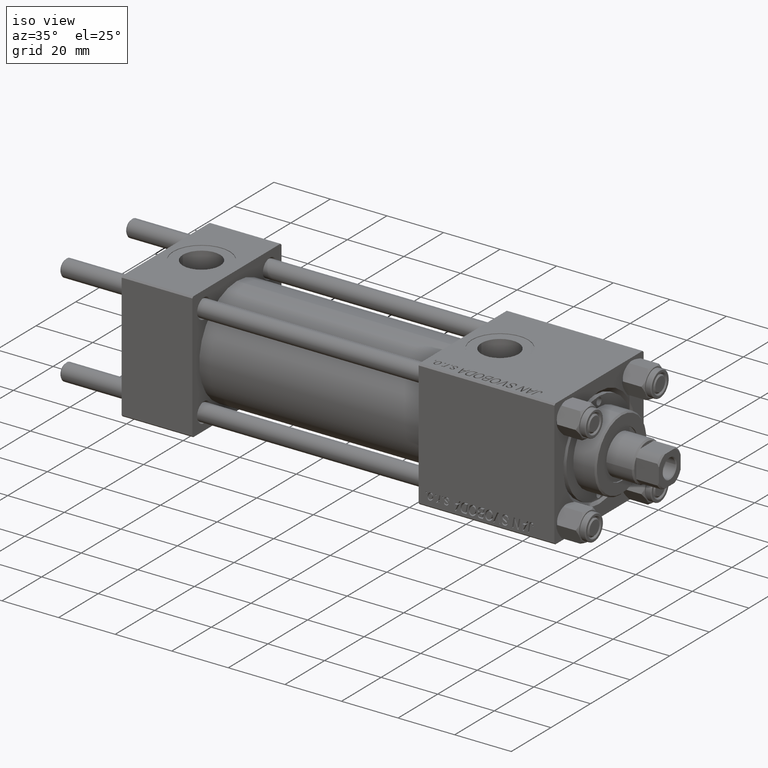
[diagram: clean part render]
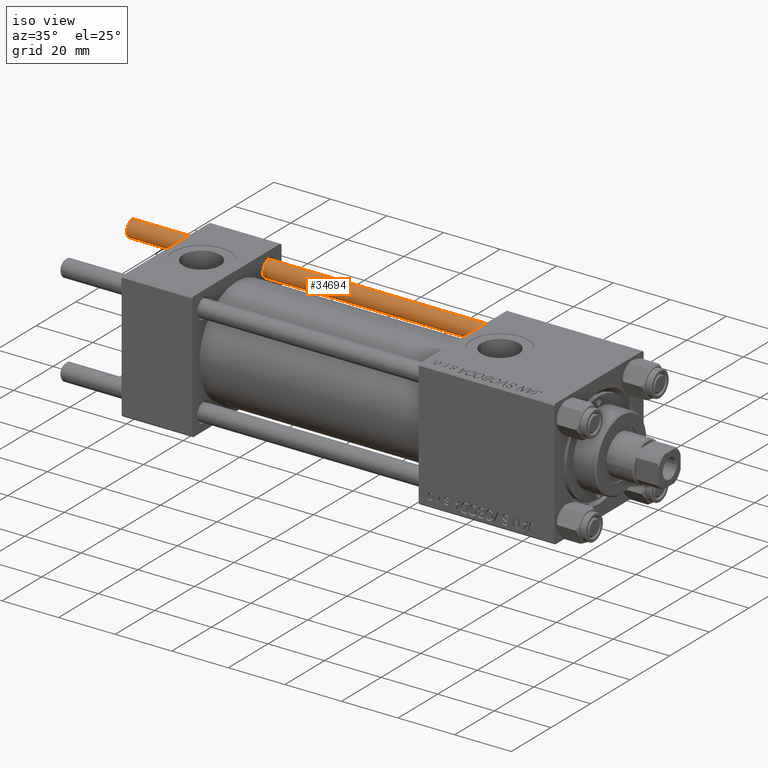
[diagram: same view with one face highlighted and labeled with its STEP entity id]
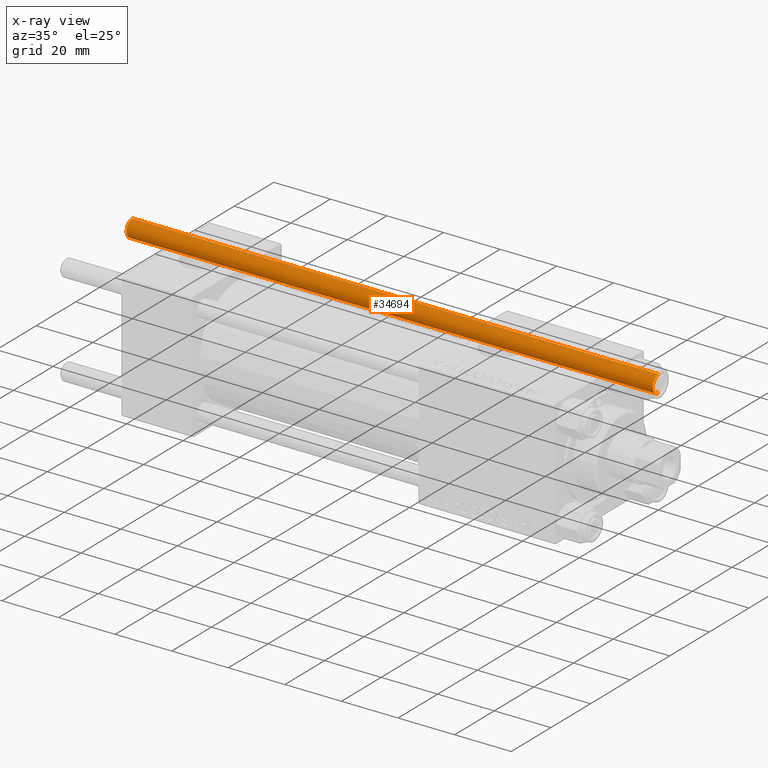
[diagram: x-ray of the same camera — body ghosted, the highlighted face saturated]
A machine part, iso view. The second image highlights one B-rep face of the part: STEP entity #34694.
The next image is the same camera in x-ray: the body ghosted, the highlighted face saturated — about 0% of this face is hidden behind the body in this view.
In plain terms, the highlighted cylindrical surface (edge-blend (fillet) strip) has radius 3 mm, axis along (-1, -0, -0).
Its self-contained STEP definition (entity closure, byte-faithful):
#359 = VECTOR ( 'NONE', #18024, 1000.000000000000000 ) ;
#1288 = CARTESIAN_POINT ( 'NONE',  ( 0.000000000000000000, 0.000000000000000000, 0.5000000000000281997 ) ) ;
#2606 = CARTESIAN_POINT ( 'NONE',  ( 3.000000000000000444, 3.673940397442060361E-16, 187.0000000000000000 ) ) ;
#4062 = EDGE_CURVE ( 'NONE', #31694, #4205, #37252, .T. ) ;
#4107 = EDGE_CURVE ( 'NONE', #31694, #44848, #18235, .T. ) ;
#4205 = VERTEX_POINT ( 'NONE', #32650 ) ;
#4346 = AXIS2_PLACEMENT_3D ( 'NONE', #1288, #40719, #20993 ) ;
#5176 = FACE_OUTER_BOUND ( 'NONE', #7083, .T. ) ;
#5228 = VECTOR ( 'NONE', #16325, 1000.000000000000000 ) ;
#7083 = EDGE_LOOP ( 'NONE', ( #29518, #14244, #45046, #25830 ) ) ;
#9220 = CYLINDRICAL_SURFACE ( 'NONE', #47862, 3.000000000000000444 ) ;
#12039 = CARTESIAN_POINT ( 'NONE',  ( -3.000000000000000444, 0.000000000000000000, 187.0000000000000000 ) ) ;
#14244 = ORIENTED_EDGE ( 'NONE', *, *, #4107, .T. ) ;
#16325 = DIRECTION ( 'NONE',  ( -0.000000000000000000, -0.000000000000000000, -1.000000000000000000 ) ) ;
#18024 = DIRECTION ( 'NONE',  ( -0.000000000000000000, -0.000000000000000000, -1.000000000000000000 ) ) ;
#18235 = CIRCLE ( 'NONE', #34356, 3.000000000000000444 ) ;
#20330 = DIRECTION ( 'NONE',  ( -1.000000000000000000, 0.000000000000000000, 0.000000000000000000 ) ) ;
#20993 = DIRECTION ( 'NONE',  ( 1.000000000000000000, 0.000000000000000000, 0.000000000000000000 ) ) ;
#23630 = CARTESIAN_POINT ( 'NONE',  ( -3.000000000000000444, 0.000000000000000000, 186.5000000000000568 ) ) ;
#24886 = DIRECTION ( 'NONE',  ( -0.000000000000000000, -0.000000000000000000, -1.000000000000000000 ) ) ;
#25830 = ORIENTED_EDGE ( 'NONE', *, *, #42001, .T. ) ;
#25929 = CARTESIAN_POINT ( 'NONE',  ( -3.000000000000000444, 0.000000000000000000, 0.5000000000000281997 ) ) ;
#26146 = CIRCLE ( 'NONE', #4346, 3.000000000000000444 ) ;
#26608 = CARTESIAN_POINT ( 'NONE',  ( 0.000000000000000000, 0.000000000000000000, 186.5000000000000568 ) ) ;
#27702 = LINE ( 'NONE', #12039, #5228 ) ;
#29518 = ORIENTED_EDGE ( 'NONE', *, *, #4062, .F. ) ;
#31694 = VERTEX_POINT ( 'NONE', #46584 ) ;
#32650 = CARTESIAN_POINT ( 'NONE',  ( 3.000000000000000444, 3.673940397442060361E-16, 0.5000000000000281997 ) ) ;
#34356 = AXIS2_PLACEMENT_3D ( 'NONE', #26608, #46839, #42029 ) ;
#34694 = ADVANCED_FACE ( 'NONE', ( #5176 ), #9220, .T. ) ;
#37252 = LINE ( 'NONE', #2606, #359 ) ;
#40083 = EDGE_CURVE ( 'NONE', #44848, #43499, #27702, .T. ) ;
#40719 = DIRECTION ( 'NONE',  ( -0.000000000000000000, -0.000000000000000000, 1.000000000000000000 ) ) ;
#42001 = EDGE_CURVE ( 'NONE', #43499, #4205, #26146, .T. ) ;
#42029 = DIRECTION ( 'NONE',  ( 1.000000000000000000, 0.000000000000000000, 0.000000000000000000 ) ) ;
#43499 = VERTEX_POINT ( 'NONE', #25929 ) ;
#44119 = CARTESIAN_POINT ( 'NONE',  ( 0.000000000000000000, 0.000000000000000000, 187.0000000000000000 ) ) ;
#44848 = VERTEX_POINT ( 'NONE', #23630 ) ;
#45046 = ORIENTED_EDGE ( 'NONE', *, *, #40083, .T. ) ;
#46584 = CARTESIAN_POINT ( 'NONE',  ( 3.000000000000000444, 3.673940397442060361E-16, 186.5000000000000568 ) ) ;
#46839 = DIRECTION ( 'NONE',  ( 0.000000000000000000, 0.000000000000000000, -1.000000000000000000 ) ) ;
#47862 = AXIS2_PLACEMENT_3D ( 'NONE', #44119, #24886, #20330 ) ;